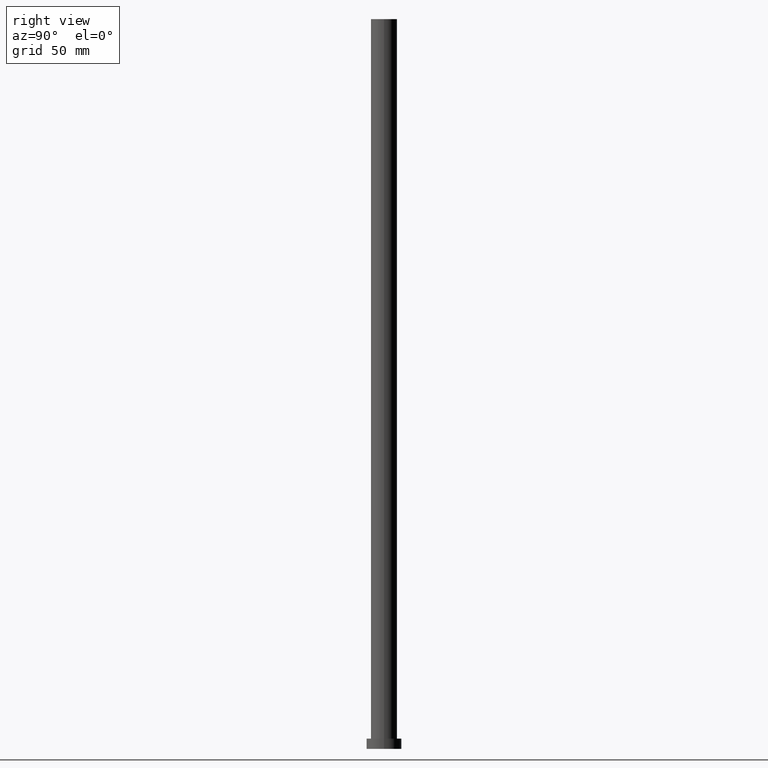
[diagram: clean part render]
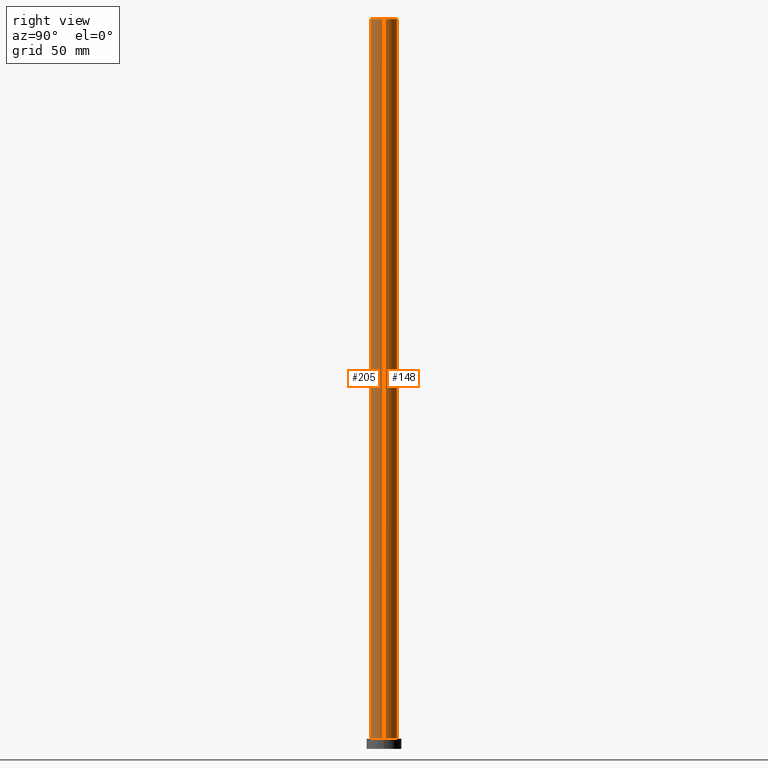
[diagram: same view with one multi-face feature highlighted, each face labeled with its STEP entity id]
A machine part, right view. The highlighted faces form ONE feature: a constant-radius fillet chain: 2 tangent blend faces with common blend radius 9 mm. The faces share edges in the B-rep.
Their STEP definitions:
[1] entity #148 (Cylinder):
#3 = EDGE_CURVE ( 'NONE', #236, #179, #159, .T. ) ;
#11 = CIRCLE ( 'NONE', #86, 9.000000000000000000 ) ;
#13 = CARTESIAN_POINT ( 'NONE',  ( -9.000000000000000000, 0.000000000000000000, 500.0000000000000000 ) ) ;
#48 = EDGE_CURVE ( 'NONE', #174, #179, #201, .T. ) ;
#49 = AXIS2_PLACEMENT_3D ( 'NONE', #117, #165, #147 ) ;
#52 = VERTEX_POINT ( 'NONE', #190 ) ;
#63 = ORIENTED_EDGE ( 'NONE', *, *, #3, .T. ) ;
#65 = CARTESIAN_POINT ( 'NONE',  ( 9.000000000000000000, 1.102182119232617714E-15, 500.0000000000000000 ) ) ;
#72 = ORIENTED_EDGE ( 'NONE', *, *, #134, .T. ) ;
#76 = ORIENTED_EDGE ( 'NONE', *, *, #48, .F. ) ;
#79 = CARTESIAN_POINT ( 'NONE',  ( 0.000000000000000000, 0.000000000000000000, 500.0000000000000000 ) ) ;
#82 = DIRECTION ( 'NONE',  ( -0.000000000000000000, -0.000000000000000000, -1.000000000000000000 ) ) ;
#85 = LINE ( 'NONE', #65, #193 ) ;
#86 = AXIS2_PLACEMENT_3D ( 'NONE', #214, #87, #88 ) ;
#87 = DIRECTION ( 'NONE',  ( 0.000000000000000000, 0.000000000000000000, 1.000000000000000000 ) ) ;
#88 = DIRECTION ( 'NONE',  ( 1.000000000000000000, 0.000000000000000000, 0.000000000000000000 ) ) ;
#92 = DIRECTION ( 'NONE',  ( -0.000000000000000000, -0.000000000000000000, -1.000000000000000000 ) ) ;
#104 = DIRECTION ( 'NONE',  ( -0.000000000000000000, -0.000000000000000000, -1.000000000000000000 ) ) ;
#108 = EDGE_CURVE ( 'NONE', #52, #174, #11, .T. ) ;
#117 = CARTESIAN_POINT ( 'NONE',  ( 0.000000000000000000, 0.000000000000000000, 7.000000000000000000 ) ) ;
#127 = AXIS2_PLACEMENT_3D ( 'NONE', #79, #104, #153 ) ;
#134 = EDGE_CURVE ( 'NONE', #52, #236, #85, .T. ) ;
#137 = EDGE_LOOP ( 'NONE', ( #247, #72, #63, #76 ) ) ;
#147 = DIRECTION ( 'NONE',  ( 1.000000000000000000, 0.000000000000000000, 0.000000000000000000 ) ) ;
#148 = ADVANCED_FACE ( 'NONE', ( #178 ), #149, .T. ) ;
#149 = CYLINDRICAL_SURFACE ( 'NONE', #127, 9.000000000000000000 ) ;
#153 = DIRECTION ( 'NONE',  ( -1.000000000000000000, 0.000000000000000000, 0.000000000000000000 ) ) ;
#155 = VECTOR ( 'NONE', #82, 1000.000000000000000 ) ;
#159 = CIRCLE ( 'NONE', #49, 9.000000000000000000 ) ;
#165 = DIRECTION ( 'NONE',  ( 0.000000000000000000, 0.000000000000000000, 1.000000000000000000 ) ) ;
#174 = VERTEX_POINT ( 'NONE', #237 ) ;
#178 = FACE_OUTER_BOUND ( 'NONE', #137, .T. ) ;
#179 = VERTEX_POINT ( 'NONE', #206 ) ;
#190 = CARTESIAN_POINT ( 'NONE',  ( 9.000000000000000000, 1.102182119232617714E-15, 500.0000000000000000 ) ) ;
#193 = VECTOR ( 'NONE', #92, 1000.000000000000000 ) ;
#201 = LINE ( 'NONE', #13, #155 ) ;
#206 = CARTESIAN_POINT ( 'NONE',  ( -9.000000000000000000, 0.000000000000000000, 7.000000000000000000 ) ) ;
#214 = CARTESIAN_POINT ( 'NONE',  ( 0.000000000000000000, 0.000000000000000000, 500.0000000000000000 ) ) ;
#228 = CARTESIAN_POINT ( 'NONE',  ( 9.000000000000000000, 1.102182119232617714E-15, 7.000000000000000000 ) ) ;
#236 = VERTEX_POINT ( 'NONE', #228 ) ;
#237 = CARTESIAN_POINT ( 'NONE',  ( -9.000000000000000000, 0.000000000000000000, 500.0000000000000000 ) ) ;
#247 = ORIENTED_EDGE ( 'NONE', *, *, #108, .F. ) ;
[2] entity #205 (Cylinder):
#13 = CARTESIAN_POINT ( 'NONE',  ( -9.000000000000000000, 0.000000000000000000, 500.0000000000000000 ) ) ;
#19 = EDGE_CURVE ( 'NONE', #174, #52, #43, .T. ) ;
#27 = DIRECTION ( 'NONE',  ( -1.000000000000000000, 0.000000000000000000, 0.000000000000000000 ) ) ;
#28 = DIRECTION ( 'NONE',  ( 1.000000000000000000, 0.000000000000000000, 0.000000000000000000 ) ) ;
#30 = CARTESIAN_POINT ( 'NONE',  ( 0.000000000000000000, 0.000000000000000000, 500.0000000000000000 ) ) ;
#37 = ORIENTED_EDGE ( 'NONE', *, *, #55, .T. ) ;
#43 = CIRCLE ( 'NONE', #254, 9.000000000000000000 ) ;
#48 = EDGE_CURVE ( 'NONE', #174, #179, #201, .T. ) ;
#51 = FACE_OUTER_BOUND ( 'NONE', #81, .T. ) ;
#52 = VERTEX_POINT ( 'NONE', #190 ) ;
#54 = DIRECTION ( 'NONE',  ( -0.000000000000000000, -0.000000000000000000, -1.000000000000000000 ) ) ;
#55 = EDGE_CURVE ( 'NONE', #179, #236, #167, .T. ) ;
#59 = AXIS2_PLACEMENT_3D ( 'NONE', #30, #54, #27 ) ;
#65 = CARTESIAN_POINT ( 'NONE',  ( 9.000000000000000000, 1.102182119232617714E-15, 500.0000000000000000 ) ) ;
#81 = EDGE_LOOP ( 'NONE', ( #100, #164, #97, #37 ) ) ;
#82 = DIRECTION ( 'NONE',  ( -0.000000000000000000, -0.000000000000000000, -1.000000000000000000 ) ) ;
#85 = LINE ( 'NONE', #65, #193 ) ;
#92 = DIRECTION ( 'NONE',  ( -0.000000000000000000, -0.000000000000000000, -1.000000000000000000 ) ) ;
#97 = ORIENTED_EDGE ( 'NONE', *, *, #48, .T. ) ;
#100 = ORIENTED_EDGE ( 'NONE', *, *, #134, .F. ) ;
#101 = DIRECTION ( 'NONE',  ( 1.000000000000000000, 0.000000000000000000, 0.000000000000000000 ) ) ;
#134 = EDGE_CURVE ( 'NONE', #52, #236, #85, .T. ) ;
#138 = CYLINDRICAL_SURFACE ( 'NONE', #59, 9.000000000000000000 ) ;
#155 = VECTOR ( 'NONE', #82, 1000.000000000000000 ) ;
#164 = ORIENTED_EDGE ( 'NONE', *, *, #19, .F. ) ;
#167 = CIRCLE ( 'NONE', #232, 9.000000000000000000 ) ;
#168 = CARTESIAN_POINT ( 'NONE',  ( 0.000000000000000000, 0.000000000000000000, 7.000000000000000000 ) ) ;
#172 = DIRECTION ( 'NONE',  ( 0.000000000000000000, 0.000000000000000000, 1.000000000000000000 ) ) ;
#174 = VERTEX_POINT ( 'NONE', #237 ) ;
#179 = VERTEX_POINT ( 'NONE', #206 ) ;
#190 = CARTESIAN_POINT ( 'NONE',  ( 9.000000000000000000, 1.102182119232617714E-15, 500.0000000000000000 ) ) ;
#193 = VECTOR ( 'NONE', #92, 1000.000000000000000 ) ;
#201 = LINE ( 'NONE', #13, #155 ) ;
#205 = ADVANCED_FACE ( 'NONE', ( #51 ), #138, .T. ) ;
#206 = CARTESIAN_POINT ( 'NONE',  ( -9.000000000000000000, 0.000000000000000000, 7.000000000000000000 ) ) ;
#217 = DIRECTION ( 'NONE',  ( 0.000000000000000000, 0.000000000000000000, 1.000000000000000000 ) ) ;
#228 = CARTESIAN_POINT ( 'NONE',  ( 9.000000000000000000, 1.102182119232617714E-15, 7.000000000000000000 ) ) ;
#232 = AXIS2_PLACEMENT_3D ( 'NONE', #168, #172, #101 ) ;
#236 = VERTEX_POINT ( 'NONE', #228 ) ;
#237 = CARTESIAN_POINT ( 'NONE',  ( -9.000000000000000000, 0.000000000000000000, 500.0000000000000000 ) ) ;
#249 = CARTESIAN_POINT ( 'NONE',  ( 0.000000000000000000, 0.000000000000000000, 500.0000000000000000 ) ) ;
#254 = AXIS2_PLACEMENT_3D ( 'NONE', #249, #217, #28 ) ;